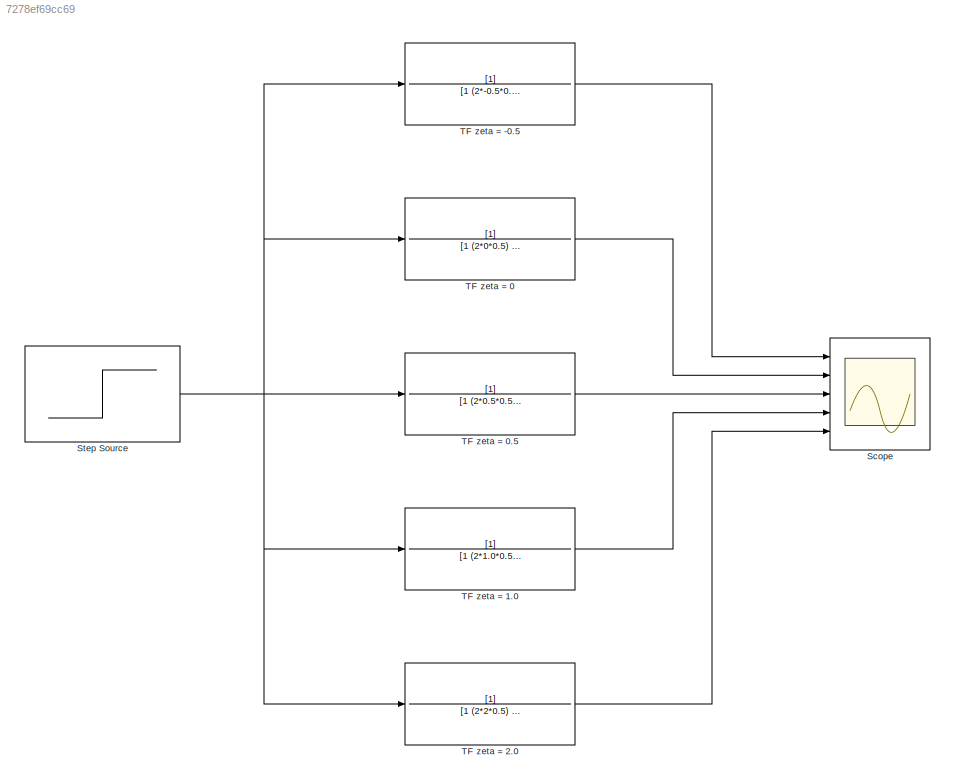
MODEL slx_7278ef69cc69
KIND model
CONFIG AbsTol = auto
CONFIG EnableMultiTasking = off
CONFIG FixedStep = auto
CONFIG MaxStep = auto
CONFIG MinStep = auto
CONFIG RelTol = 1e-3
CONFIG SampleTimeConstraint = Unconstrained
CONFIG SolverName = VariableStepAuto
CONFIG StartTime = 0.0
CONFIG StopTime = 50
BLOCK [Scope] Scope
  Floating = off
  NumInputPorts = 5
  Ports = [5]
  ScopeSpecificationString = Simulink.scopes.TimeScopeBlockCfg('CurrentConfiguration', extmgr.ConfigurationSet(extmgr.Configuration('Core','General UI',true),extmgr.Configuration('Core','Source UI',true),extmgr.Configuration('Sources','WiredSimulink',true),extmgr.Configuration('Visuals','Time Domain',true,'SerializedDisplays',{struct('MinYLimReal','-5.02582','MaxYLimReal','64.38919','YLabelReal','','MinYLimMag','0.00000','Max...<+1470ch>
BLOCK [Step] Step Source
  After = 2
  SampleTime = 0
BLOCK [TransferFcn] TF zeta = -0.5
  Denominator = [1 (2*-0.5*0.5) ((0.5)^(2))]
BLOCK [TransferFcn] TF zeta = 0
  Denominator = [1 (2*0*0.5) ((0.5)^(2))]
BLOCK [TransferFcn] TF zeta = 0.5
  Denominator = [1 (2*0.5*0.5) ((0.5)^(2))]
BLOCK [TransferFcn] TF zeta = 1.0
  Denominator = [1 (2*1.0*0.5) ((0.5)^(2))]
BLOCK [TransferFcn] TF zeta = 2.0
  Denominator = [1 (2*2*0.5) ((0.5)^(2))]
NET Step Source:1 -> TF zeta = -0.5:1, TF zeta = 0.5:1, TF zeta = 0:1, TF zeta = 1.0:1, TF zeta = 2.0:1
LINE TF zeta = -0.5:1 -> Scope:1
LINE TF zeta = 0.5:1 -> Scope:3
LINE TF zeta = 0:1 -> Scope:2
LINE TF zeta = 1.0:1 -> Scope:4
LINE TF zeta = 2.0:1 -> Scope:5
note: NET lines group one-source signal fan-out (src -> all destinations, sorted); 1:1 wires keep LINE
